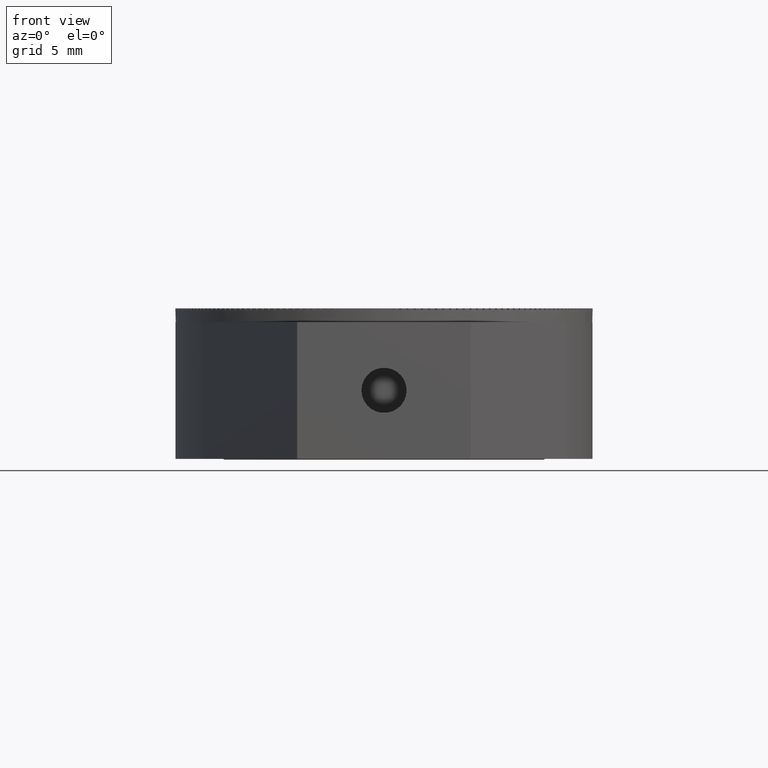
[diagram: clean part render]
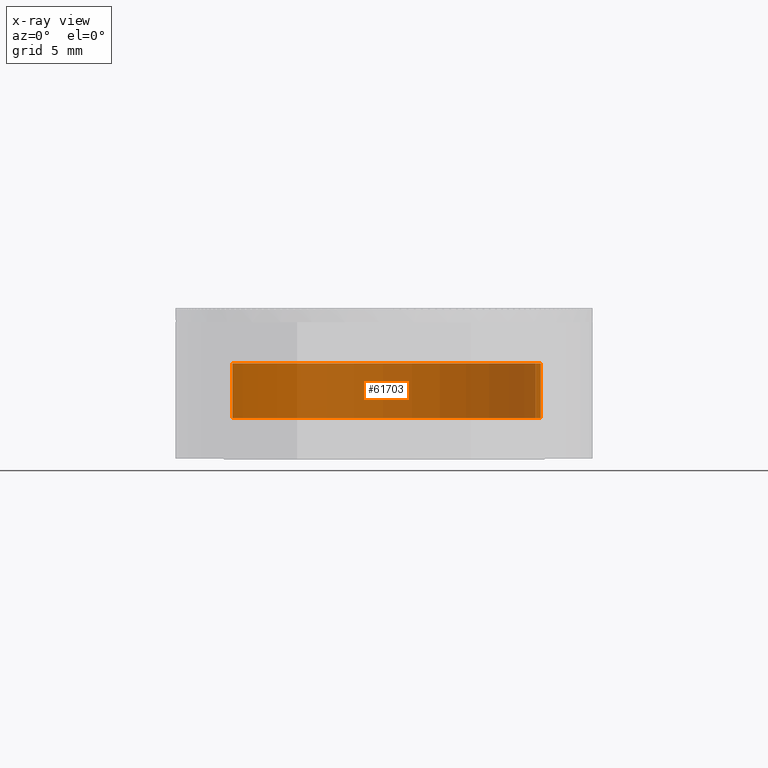
[diagram: x-ray — body ghosted, one internal face saturated and labeled with its STEP entity id]
A machine part, front view, then the same camera in x-ray: the body is ghosted and one INTERNAL B-rep face — a face not visible from any outside direction — is saturated and labeled: STEP entity #61703.
In plain terms, the highlighted cylindrical surface (partial cylindrical patch) has radius 11.5 mm, axis along (0, 0, 1).
Its self-contained STEP definition (entity closure, byte-faithful):
#3439 = VERTEX_POINT ( 'NONE', #58090 ) ;
#3878 = EDGE_CURVE ( 'NONE', #13750, #43984, #7855, .T. ) ;
#4057 = EDGE_CURVE ( 'NONE', #3439, #58587, #14427, .T. ) ;
#7550 = CYLINDRICAL_SURFACE ( 'NONE', #62103, 11.50000000000000355 ) ;
#7855 = CIRCLE ( 'NONE', #22137, 11.50000000000000355 ) ;
#9496 = CARTESIAN_POINT ( 'NONE',  ( 0.000000000000000000, -7.025000000000000355, 0.000000000000000000 ) ) ;
#11607 = CARTESIAN_POINT ( 'NONE',  ( 0.000000000000000000, -3.024999999999999911, 11.50000000000000355 ) ) ;
#11969 = VECTOR ( 'NONE', #36436, 1000.000000000000000 ) ;
#12715 = DIRECTION ( 'NONE',  ( -0.000000000000000000, 1.000000000000000000, -0.000000000000000000 ) ) ;
#13750 = VERTEX_POINT ( 'NONE', #11607 ) ;
#14427 = CIRCLE ( 'NONE', #39711, 11.50000000000000178 ) ;
#15746 = DIRECTION ( 'NONE',  ( 0.000000000000000000, 0.000000000000000000, 1.000000000000000000 ) ) ;
#16147 = CARTESIAN_POINT ( 'NONE',  ( 0.000000000000000000, 0.000000000000000000, 11.50000000000000355 ) ) ;
#16910 = EDGE_CURVE ( 'NONE', #58587, #43984, #45016, .T. ) ;
#16956 = DIRECTION ( 'NONE',  ( -0.000000000000000000, 1.000000000000000000, -0.000000000000000000 ) ) ;
#18553 = CARTESIAN_POINT ( 'NONE',  ( 0.000000000000000000, 0.000000000000000000, 0.000000000000000000 ) ) ;
#20863 = EDGE_LOOP ( 'NONE', ( #67400, #39658, #37961, #64430 ) ) ;
#22137 = AXIS2_PLACEMENT_3D ( 'NONE', #32578, #37053, #15746 ) ;
#24971 = DIRECTION ( 'NONE',  ( 0.000000000000000000, 0.000000000000000000, 1.000000000000000000 ) ) ;
#26120 = LINE ( 'NONE', #16147, #11969 ) ;
#28371 = CARTESIAN_POINT ( 'NONE',  ( 1.408343819019456570E-15, -3.024999999999999911, -11.50000000000000355 ) ) ;
#32578 = CARTESIAN_POINT ( 'NONE',  ( 0.000000000000000000, -3.024999999999999911, 0.000000000000000000 ) ) ;
#36436 = DIRECTION ( 'NONE',  ( -0.000000000000000000, 1.000000000000000000, -0.000000000000000000 ) ) ;
#37053 = DIRECTION ( 'NONE',  ( -0.000000000000000000, 1.000000000000000000, -0.000000000000000000 ) ) ;
#37961 = ORIENTED_EDGE ( 'NONE', *, *, #3878, .F. ) ;
#39658 = ORIENTED_EDGE ( 'NONE', *, *, #16910, .T. ) ;
#39711 = AXIS2_PLACEMENT_3D ( 'NONE', #9496, #41118, #24971 ) ;
#41118 = DIRECTION ( 'NONE',  ( -0.000000000000000000, 1.000000000000000000, -0.000000000000000000 ) ) ;
#43984 = VERTEX_POINT ( 'NONE', #28371 ) ;
#45016 = LINE ( 'NONE', #65982, #60913 ) ;
#54287 = DIRECTION ( 'NONE',  ( 0.000000000000000000, 0.000000000000000000, 1.000000000000000000 ) ) ;
#55839 = EDGE_CURVE ( 'NONE', #3439, #13750, #26120, .T. ) ;
#58090 = CARTESIAN_POINT ( 'NONE',  ( 0.000000000000000000, -7.025000000000000355, 11.50000000000000178 ) ) ;
#58587 = VERTEX_POINT ( 'NONE', #65804 ) ;
#60913 = VECTOR ( 'NONE', #16956, 1000.000000000000000 ) ;
#61703 = ADVANCED_FACE ( 'NONE', ( #65627 ), #7550, .T. ) ;
#62103 = AXIS2_PLACEMENT_3D ( 'NONE', #18553, #12715, #54287 ) ;
#64430 = ORIENTED_EDGE ( 'NONE', *, *, #55839, .F. ) ;
#65627 = FACE_OUTER_BOUND ( 'NONE', #20863, .T. ) ;
#65804 = CARTESIAN_POINT ( 'NONE',  ( 1.408343819019456373E-15, -7.025000000000000355, -11.50000000000000178 ) ) ;
#65982 = CARTESIAN_POINT ( 'NONE',  ( 1.408343819019456570E-15, 0.000000000000000000, -11.50000000000000355 ) ) ;
#67400 = ORIENTED_EDGE ( 'NONE', *, *, #4057, .T. ) ;